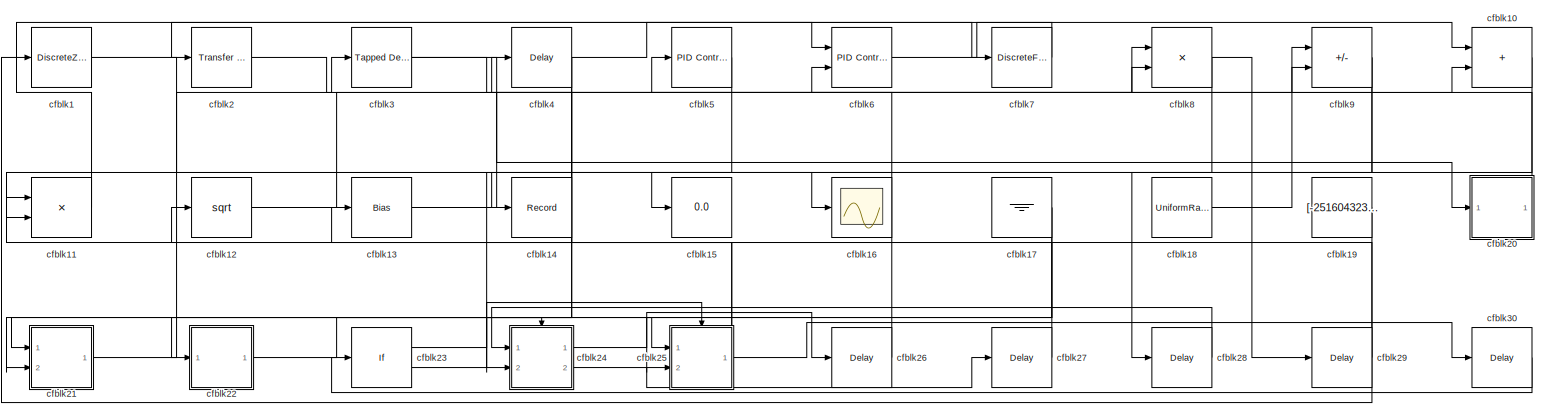
[diagram: root canvas - part 1/1, most of the canvas]
MODEL slx_4a0b7a1fc77a
KIND model
CONFIG AbsTol = auto
CONFIG EnableMultiTasking = off
CONFIG FixedStep = auto
CONFIG MaxStep = auto
CONFIG MinStep = auto
CONFIG RelTol = 1e-3
CONFIG SampleTimeConstraint = Unconstrained
CONFIG SolverName = VariableStepAuto
CONFIG StartTime = 0.0
CONFIG StopTime = 10.0
BLOCK [DiscreteZeroPole] cfblk1
  Gain = 1
  Poles = [0 0.5]
BLOCK [Sum] cfblk10
  IconShape = rectangular
  Ports = [2, 1]
BLOCK [Product] cfblk11
  Ports = [2, 1]
BLOCK [Sqrt] cfblk12
BLOCK [Bias] cfblk13
  Bias = [323358207.216857]
  SaturateOnIntegerOverflow = off
BLOCK [Record] cfblk14
  FileSettingsInternal = {"entries":[{"content":{"excelSettings":{"content":{},"type":"Streamout.ExcelSettings"}},"type":"Streamout.FileSettingStorage","uuid":"440c9b9c-0872-46eb-8240-ea4b183333c6"}],"packageUris":["http://schema.mathworks.com/mf0/streamout_blocks/R2020a"],"version":"1.0"}
  Ports = [1]
  SignalsInternal = {"entries":[{"content":{"signals":[{"content":{"blockPath":["sampleModel303/cfblk14"],"channel":[],"dimensions":[1],"domain":"sampleModel303/cfblk14","lineColor":"#d95319","plots":[1],"port":1,"sid":[""],"signalID":12937,"signalName":"cfblk5"},"type":"RecordBlkView.Signal","uuid":"6dd13b30-1ffb-47f0-87d0-d0638f00841f"}]},"type":"RecordBlkView.InputSignals","uuid":"88e5a100-a0d7-4527-96a5-22927eabc...<+97ch>
  VisualizationBindings = {"sparklinesplugin":{"info":[{"bindingParametersList":[],"subplotID":1}]}}
BLOCK [Display] cfblk15
  Decimation = 1
  Ports = [1]
BLOCK [Scope] cfblk16
  Floating = off
  NumInputPorts = 1
  Ports = [1]
BLOCK [Ground] cfblk17
BLOCK [UniformRandomNumber] cfblk18
  Maximum = [6793966859.054996]
  Minimum = [-6733898542.464010]
  SampleTime = 0.1
  Seed = [71846013.000000]
BLOCK [Constant] cfblk19
  SampleTime = 1
  Value = [-251604323.955202]
BLOCK [Reference] cfblk2  REF=simulink/Discrete/Transfer Fcn
First Order
  Ports = [1, 1]
  SourceBlock = simulink/Discrete/Transfer Fcn\nFirst Order
  SourceProductBaseCode = SL
  SourceType = First Order Transfer Fcn
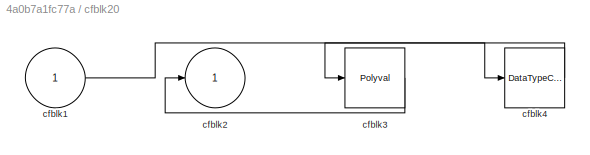
BLOCK [SubSystem] cfblk20
  Ports = [1, 1]
  RequestExecContextInheritance = off
BLOCK [Inport] cfblk20/cfblk1
BLOCK [Outport] cfblk20/cfblk2
BLOCK [Polyval] cfblk20/cfblk3
  Coefs = [ +2.081618890e-019, -1.441693666e-014, +4.719686976e-010, -8.536869453e-006, +1.621573104e-001, -8.087801117e+001 ]
BLOCK [DataTypeConversion] cfblk20/cfblk4
  RndMeth = Floor
  SaturateOnIntegerOverflow = off
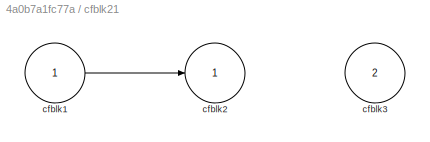
BLOCK [SubSystem] cfblk21
  Ports = [2, 1]
  RequestExecContextInheritance = off
BLOCK [Inport] cfblk21/cfblk1
BLOCK [Outport] cfblk21/cfblk2
BLOCK [Inport] cfblk21/cfblk3
  Port = 2
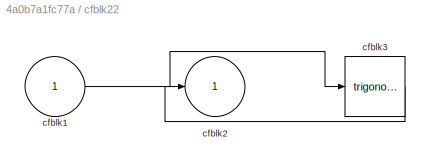
BLOCK [SubSystem] cfblk22
  Ports = [1, 1]
  RequestExecContextInheritance = off
BLOCK [Inport] cfblk22/cfblk1
BLOCK [Outport] cfblk22/cfblk2
BLOCK [Trigonometry] cfblk22/cfblk3
  Ports = [1, 1]
BLOCK [If] cfblk23
  IfExpression = u1 >= 0
  Ports = [1, 2]
  SampleTime = 1
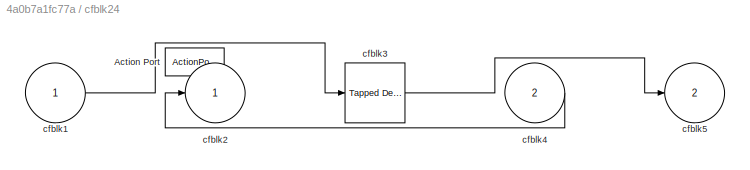
BLOCK [SubSystem] cfblk24
  Ports = [2, 2, 0, 0, 0, 0, 0, 1]
  RequestExecContextInheritance = off
  TreatAsAtomicUnit = on
BLOCK [ActionPort] cfblk24/Action Port
  ActionPortLabel = if(u1 >= 0)
BLOCK [Inport] cfblk24/cfblk1
BLOCK [Outport] cfblk24/cfblk2
BLOCK [Reference] cfblk24/cfblk3  REF=simulink/Discrete/Tapped Delay
  Ports = [1, 1]
  SourceBlock = simulink/Discrete/Tapped Delay
  SourceProductBaseCode = SL
  SourceType = Tapped Delay Line
BLOCK [Inport] cfblk24/cfblk4
  Port = 2
BLOCK [Outport] cfblk24/cfblk5
  Port = 2
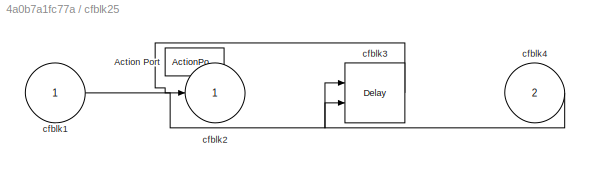
BLOCK [SubSystem] cfblk25
  Ports = [2, 1, 0, 0, 0, 0, 0, 1]
  RequestExecContextInheritance = off
  TreatAsAtomicUnit = on
BLOCK [ActionPort] cfblk25/Action Port
  ActionPortLabel = else
BLOCK [Inport] cfblk25/cfblk1
BLOCK [Outport] cfblk25/cfblk2
BLOCK [Delay] cfblk25/cfblk3
  DelayLengthSource = Input port
  InputPortMap = u0,p1
  Ports = [2, 1]
BLOCK [Inport] cfblk25/cfblk4
  Port = 2
BLOCK [Delay] cfblk26
  InputPortMap = u0
  Ports = [1, 1]
  SampleTime = 1
BLOCK [Delay] cfblk27
  InputPortMap = u0
  Ports = [1, 1]
  SampleTime = 1
BLOCK [Delay] cfblk28
  InputPortMap = u0
  Ports = [1, 1]
  SampleTime = 1
BLOCK [Delay] cfblk29
  InputPortMap = u0
  Ports = [1, 1]
  SampleTime = 1
BLOCK [Reference] cfblk3  REF=simulink/Discrete/Tapped Delay
  Ports = [1, 1]
  SourceBlock = simulink/Discrete/Tapped Delay
  SourceProductBaseCode = SL
  SourceType = Tapped Delay Line
BLOCK [Delay] cfblk30
  InputPortMap = u0
  Ports = [1, 1]
  SampleTime = 1
BLOCK [Delay] cfblk4
  InputPortMap = u0
  Ports = [1, 1]
  SampleTime = 1
BLOCK [Reference] cfblk5  REF=slpidlib/PID Controller
  Ports = [1, 1]
  SourceBlock = slpidlib/PID Controller
  SourceProductBaseCode = SL
  SourceType = PID 1dof
BLOCK [Reference] cfblk6  REF=slpidlib/PID Controller (2DOF)
  Ports = [2, 1]
  SourceBlock = slpidlib/PID Controller (2DOF)
  SourceProductBaseCode = SL
  SourceType = PID 2dof
BLOCK [DiscreteFilter] cfblk7
  InputPortMap = u0
  Ports = [1, 1]
  SampleTime = 1
BLOCK [Product] cfblk8
  Inputs = **
  Ports = [2, 1]
BLOCK [Sum] cfblk9
  IconShape = rectangular
  Inputs = +-
  Ports = [2, 1]
LINE cfblk10:1 -> cfblk24:2
LINE cfblk11:1 -> cfblk6:1
LINE cfblk12:1 -> cfblk8:2
LINE cfblk13:1 -> cfblk8:1
NET cfblk17:1 -> cfblk21:1, cfblk25:2
LINE cfblk18:1 -> cfblk9:1
LINE cfblk19:1 -> cfblk1:1
LINE cfblk1:1 -> cfblk16:1
LINE cfblk20/cfblk1:1 -> cfblk20/cfblk4:1
LINE cfblk20/cfblk3:1 -> cfblk20/cfblk2:1
LINE cfblk20/cfblk4:1 -> cfblk20/cfblk3:1
LINE cfblk20:1 -> cfblk5:1
LINE cfblk21/cfblk1:1 -> cfblk21/cfblk2:1
LINE cfblk21:1 -> cfblk3:1
LINE cfblk22/cfblk1:1 -> cfblk22/cfblk3:1
LINE cfblk22/cfblk3:1 -> cfblk22/cfblk2:1
LINE cfblk22:1 -> cfblk25:1
LINE cfblk23:1 -> cfblk24:ifaction
LINE cfblk23:2 -> cfblk25:ifaction
LINE cfblk24/cfblk1:1 -> cfblk24/cfblk3:1
LINE cfblk24/cfblk3:1 -> cfblk24/cfblk5:1
LINE cfblk24/cfblk4:1 -> cfblk24/cfblk2:1
LINE cfblk24:1 -> cfblk26:1
LINE cfblk24:2 -> cfblk27:1
LINE cfblk25/cfblk1:1 -> cfblk25/cfblk3:1
LINE cfblk25/cfblk3:1 -> cfblk25/cfblk2:1
LINE cfblk25/cfblk4:1 -> cfblk25/cfblk3:2
NET cfblk25:1 -> cfblk12:1, cfblk13:1, cfblk30:1
LINE cfblk26:1 -> cfblk6:2
LINE cfblk27:1 -> cfblk11:1
LINE cfblk28:1 -> cfblk24:1
LINE cfblk29:1 -> cfblk4:1
LINE cfblk2:1 -> cfblk9:2
LINE cfblk30:1 -> cfblk23:1
NET cfblk3:1 -> cfblk10:2, cfblk20:1
NET cfblk4:1 -> cfblk21:2, cfblk22:1, cfblk7:1
LINE cfblk5:1 -> cfblk14:1
LINE cfblk6:1 -> cfblk10:1
LINE cfblk7:1 -> cfblk2:1
NET cfblk8:1 -> cfblk28:1, cfblk29:1
NET cfblk9:1 -> cfblk11:2, cfblk15:1
note: NET lines group one-source signal fan-out (src -> all destinations, sorted); 1:1 wires keep LINE
